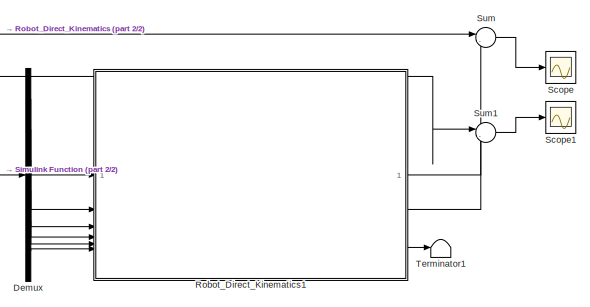
[diagram: root canvas - part 1/2, right side, full height]
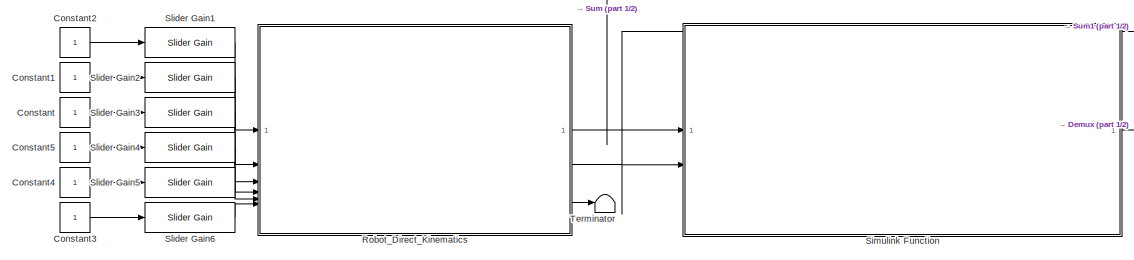
[diagram: root canvas - part 2/2, left side, full height]
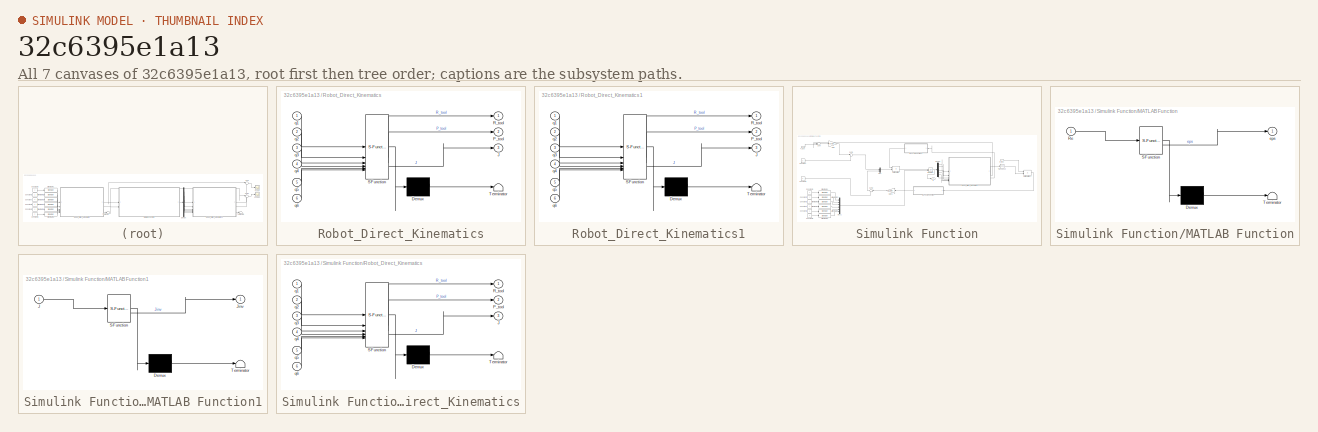
[diagram: thumbnail index - all 7 canvases of the model, root first then tree order]
MODEL slx_32c6395e1a13
KIND model
CONFIG AbsTol = auto
CONFIG EnableMultiTasking = on
CONFIG FixedStep = auto
CONFIG MaxStep = auto
CONFIG MinStep = auto
CONFIG RelTol = 1e-3
CONFIG SampleTimeConstraint = Unconstrained
CONFIG SolverName = VariableStepAuto
CONFIG StartTime = 0.0
CONFIG StopTime = 25
BLOCK [Constant] Constant
BLOCK [Constant] Constant1
BLOCK [Constant] Constant2
BLOCK [Constant] Constant3
BLOCK [Constant] Constant4
BLOCK [Constant] Constant5
BLOCK [Demux] Demux
  Outputs = 6
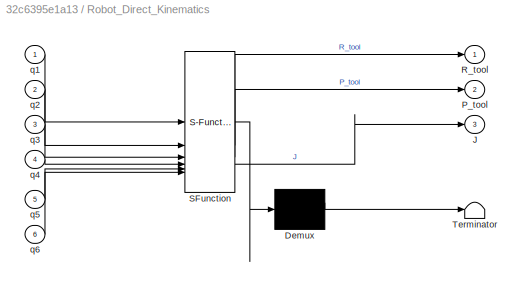
BLOCK [SubSystem] Robot_Direct_Kinematics
  ErrorFcn = Stateflow.Translate.translate
  PermitHierarchicalResolution = ExplicitOnly
  SFBlockType = MATLAB Function
  TreatAsAtomicUnit = on
BLOCK [Demux] Robot_Direct_Kinematics/ Demux 
  Outputs = 1
BLOCK [S-Function] Robot_Direct_Kinematics/ SFunction 
  EnableBusSupport = on
  FunctionName = sf_sfun
  PortCounts = [6 4]
  SFcnIsStateOwnerBlock = off
  SFunctionDeploymentMode = off
  Tag = Stateflow S-Function 2
BLOCK [Terminator] Robot_Direct_Kinematics/ Terminator 
BLOCK [Outport] Robot_Direct_Kinematics/J
  Port = 3
BLOCK [Outport] Robot_Direct_Kinematics/P_tool
  Port = 2
BLOCK [Outport] Robot_Direct_Kinematics/R_tool
BLOCK [Inport] Robot_Direct_Kinematics/q1
BLOCK [Inport] Robot_Direct_Kinematics/q2
  Port = 2
BLOCK [Inport] Robot_Direct_Kinematics/q3
  Port = 3
BLOCK [Inport] Robot_Direct_Kinematics/q4
  Port = 4
BLOCK [Inport] Robot_Direct_Kinematics/q5
  Port = 5
BLOCK [Inport] Robot_Direct_Kinematics/q6
  Port = 6
BLOCK [SubSystem] Robot_Direct_Kinematics1
  ErrorFcn = Stateflow.Translate.translate
  PermitHierarchicalResolution = ExplicitOnly
  SFBlockType = MATLAB Function
  TreatAsAtomicUnit = on
BLOCK [Demux] Robot_Direct_Kinematics1/ Demux 
  Outputs = 1
BLOCK [S-Function] Robot_Direct_Kinematics1/ SFunction 
  EnableBusSupport = on
  FunctionName = sf_sfun
  PortCounts = [6 4]
  SFcnIsStateOwnerBlock = off
  SFunctionDeploymentMode = off
  Tag = Stateflow S-Function 5
BLOCK [Terminator] Robot_Direct_Kinematics1/ Terminator 
BLOCK [Outport] Robot_Direct_Kinematics1/J
  Port = 3
BLOCK [Outport] Robot_Direct_Kinematics1/P_tool
  Port = 2
BLOCK [Outport] Robot_Direct_Kinematics1/R_tool
BLOCK [Inport] Robot_Direct_Kinematics1/q1
BLOCK [Inport] Robot_Direct_Kinematics1/q2
  Port = 2
BLOCK [Inport] Robot_Direct_Kinematics1/q3
  Port = 3
BLOCK [Inport] Robot_Direct_Kinematics1/q4
  Port = 4
BLOCK [Inport] Robot_Direct_Kinematics1/q5
  Port = 5
BLOCK [Inport] Robot_Direct_Kinematics1/q6
  Port = 6
BLOCK [Scope] Scope
  Floating = off
  NumInputPorts = 1
  ScopeSpecificationString = Simulink.scopes.TimeScopeBlockCfg('CurrentConfiguration', extmgr.ConfigurationSet(extmgr.Configuration('Core','General UI',true),extmgr.Configuration('Core','Source UI',true),extmgr.Configuration('Sources','WiredSimulink',true),extmgr.Configuration('Visuals','Time Domain',true,'SerializedDisplays',{struct('MinYLimReal','-1.87145','MaxYLimReal','1.33704','YLabelReal','','MinYLimMag','0.00000','MaxY...<+1478ch>
BLOCK [Scope] Scope1
  Floating = off
  NumInputPorts = 1
  ScopeSpecificationString = Simulink.scopes.TimeScopeBlockCfg('CurrentConfiguration', extmgr.ConfigurationSet(extmgr.Configuration('Core','General UI',true),extmgr.Configuration('Core','Source UI',true),extmgr.Configuration('Sources','WiredSimulink',true,'DataLoggingVariableName','ScopeData1'),extmgr.Configuration('Visuals','Time Domain',true,'SerializedDisplays',{struct('MinYLimReal','-1.87145','MaxYLimReal','1.33704','YLab...<+1517ch>
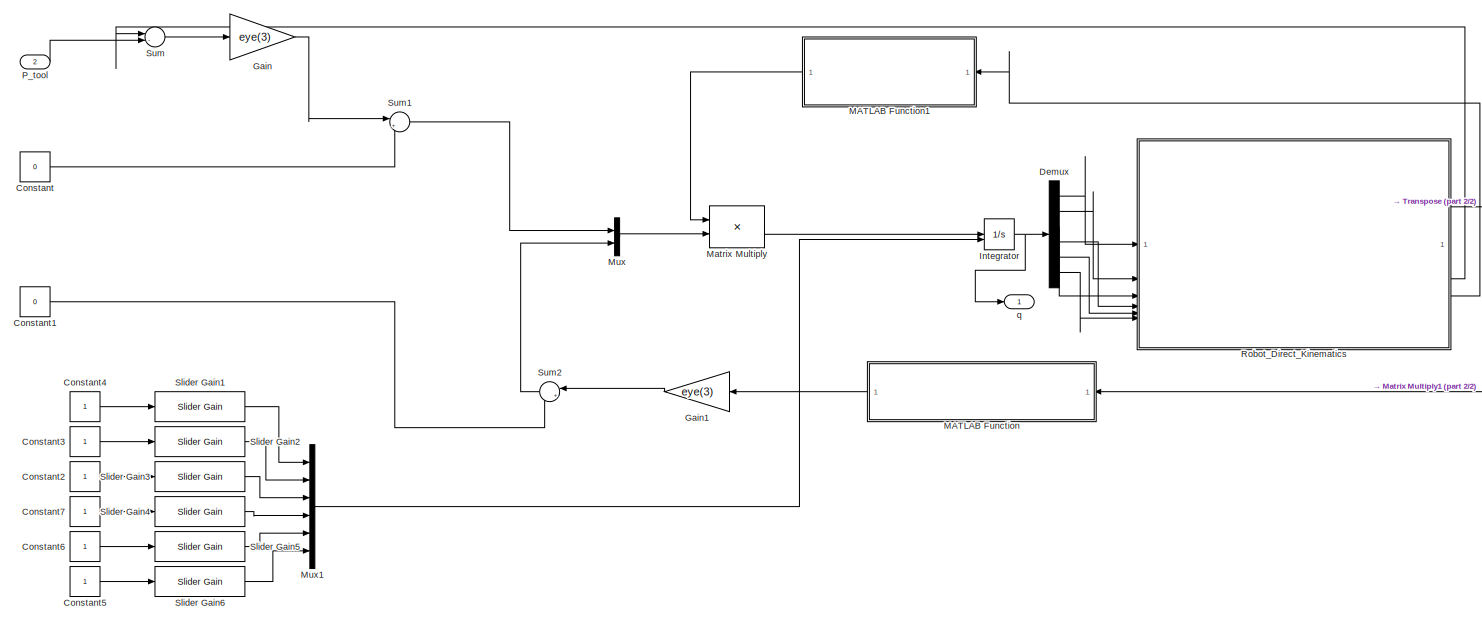
[diagram: Simulink Function - part 1/2, most of the canvas]
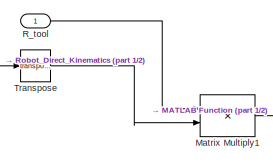
[diagram: Simulink Function - part 2/2, middle right region]
BLOCK [SubSystem] Simulink Function
  TreatAsAtomicUnit = on
BLOCK [Constant] Simulink Function/Constant
  Value = 0
BLOCK [Constant] Simulink Function/Constant1
  Value = 0
BLOCK [Constant] Simulink Function/Constant2
BLOCK [Constant] Simulink Function/Constant3
BLOCK [Constant] Simulink Function/Constant4
BLOCK [Constant] Simulink Function/Constant5
BLOCK [Constant] Simulink Function/Constant6
BLOCK [Constant] Simulink Function/Constant7
BLOCK [Demux] Simulink Function/Demux
  Outputs = 6
BLOCK [Gain] Simulink Function/Gain
  Gain = eye(3)
  Multiplication = Matrix(K*u) (u vector)
BLOCK [Gain] Simulink Function/Gain1
  Gain = eye(3)
  Multiplication = Matrix(K*u) (u vector)
  NameLocation = top
BLOCK [Integrator] Simulink Function/Integrator
  InitialConditionSource = external
BLOCK [SubSystem] Simulink Function/MATLAB Function
  ErrorFcn = Stateflow.Translate.translate
  NameLocation = top
  PermitHierarchicalResolution = ExplicitOnly
  SFBlockType = MATLAB Function
  TreatAsAtomicUnit = on
BLOCK [Demux] Simulink Function/MATLAB Function/ Demux 
  Outputs = 1
BLOCK [S-Function] Simulink Function/MATLAB Function/ SFunction 
  EnableBusSupport = on
  FunctionName = sf_sfun
  PortCounts = [1 2]
  SFcnIsStateOwnerBlock = off
  SFunctionDeploymentMode = off
  Tag = Stateflow S-Function 3
BLOCK [Terminator] Simulink Function/MATLAB Function/ Terminator 
BLOCK [Inport] Simulink Function/MATLAB Function/Re
BLOCK [Outport] Simulink Function/MATLAB Function/eps
BLOCK [SubSystem] Simulink Function/MATLAB Function1
  ErrorFcn = Stateflow.Translate.translate
  NameLocation = top
  PermitHierarchicalResolution = ExplicitOnly
  SFBlockType = MATLAB Function
  TreatAsAtomicUnit = on
BLOCK [Demux] Simulink Function/MATLAB Function1/ Demux 
  Outputs = 1
BLOCK [S-Function] Simulink Function/MATLAB Function1/ SFunction 
  EnableBusSupport = on
  FunctionName = sf_sfun
  PortCounts = [1 2]
  SFcnIsStateOwnerBlock = off
  SFunctionDeploymentMode = off
  Tag = Stateflow S-Function 4
BLOCK [Terminator] Simulink Function/MATLAB Function1/ Terminator 
BLOCK [Inport] Simulink Function/MATLAB Function1/J
BLOCK [Outport] Simulink Function/MATLAB Function1/Jinv
BLOCK [Product] Simulink Function/Matrix Multiply
  Multiplication = Matrix(*)
BLOCK [Product] Simulink Function/Matrix Multiply1
  Multiplication = Matrix(*)
BLOCK [Mux] Simulink Function/Mux
  DisplayOption = bar
  Inputs = 2
BLOCK [Mux] Simulink Function/Mux1
  DisplayOption = bar
  Inputs = 6
BLOCK [Inport] Simulink Function/P_tool
  Port = 2
BLOCK [Inport] Simulink Function/R_tool
BLOCK [SubSystem] Simulink Function/Robot_Direct_Kinematics
  ErrorFcn = Stateflow.Translate.translate
  PermitHierarchicalResolution = ExplicitOnly
  SFBlockType = MATLAB Function
  TreatAsAtomicUnit = on
BLOCK [Demux] Simulink Function/Robot_Direct_Kinematics/ Demux 
  Outputs = 1
BLOCK [S-Function] Simulink Function/Robot_Direct_Kinematics/ SFunction 
  EnableBusSupport = on
  FunctionName = sf_sfun
  PortCounts = [6 4]
  SFcnIsStateOwnerBlock = off
  SFunctionDeploymentMode = off
  Tag = Stateflow S-Function 1
BLOCK [Terminator] Simulink Function/Robot_Direct_Kinematics/ Terminator 
BLOCK [Outport] Simulink Function/Robot_Direct_Kinematics/J
  Port = 3
BLOCK [Outport] Simulink Function/Robot_Direct_Kinematics/P_tool
  Port = 2
BLOCK [Outport] Simulink Function/Robot_Direct_Kinematics/R_tool
BLOCK [Inport] Simulink Function/Robot_Direct_Kinematics/q1
BLOCK [Inport] Simulink Function/Robot_Direct_Kinematics/q2
  Port = 2
BLOCK [Inport] Simulink Function/Robot_Direct_Kinematics/q3
  Port = 3
BLOCK [Inport] Simulink Function/Robot_Direct_Kinematics/q4
  Port = 4
BLOCK [Inport] Simulink Function/Robot_Direct_Kinematics/q5
  Port = 5
BLOCK [Inport] Simulink Function/Robot_Direct_Kinematics/q6
  Port = 6
BLOCK [Reference] Simulink Function/Slider Gain1  REF=simulink/Math
Operations/Slider
Gain
  SourceBlock = simulink/Math\nOperations/Slider\nGain
  SourceType = Slider Gain
BLOCK [Reference] Simulink Function/Slider Gain2  REF=simulink/Math
Operations/Slider
Gain
  SourceBlock = simulink/Math\nOperations/Slider\nGain
  SourceType = Slider Gain
BLOCK [Reference] Simulink Function/Slider Gain3  REF=simulink/Math
Operations/Slider
Gain
  SourceBlock = simulink/Math\nOperations/Slider\nGain
  SourceType = Slider Gain
BLOCK [Reference] Simulink Function/Slider Gain4  REF=simulink/Math
Operations/Slider
Gain
  SourceBlock = simulink/Math\nOperations/Slider\nGain
  SourceType = Slider Gain
BLOCK [Reference] Simulink Function/Slider Gain5  REF=simulink/Math
Operations/Slider
Gain
  SourceBlock = simulink/Math\nOperations/Slider\nGain
  SourceType = Slider Gain
BLOCK [Reference] Simulink Function/Slider Gain6  REF=simulink/Math
Operations/Slider
Gain
  SourceBlock = simulink/Math\nOperations/Slider\nGain
  SourceType = Slider Gain
BLOCK [Sum] Simulink Function/Sum
  Inputs = |-+
  NameLocation = top
BLOCK [Sum] Simulink Function/Sum1
  Inputs = |++
BLOCK [Sum] Simulink Function/Sum2
  Inputs = |++
  NameLocation = top
BLOCK [Math] Simulink Function/Transpose
  Operator = transpose
BLOCK [Outport] Simulink Function/q
BLOCK [Reference] Slider Gain1  REF=simulink/Math
Operations/Slider
Gain
  SourceBlock = simulink/Math\nOperations/Slider\nGain
  SourceType = Slider Gain
BLOCK [Reference] Slider Gain2  REF=simulink/Math
Operations/Slider
Gain
  SourceBlock = simulink/Math\nOperations/Slider\nGain
  SourceType = Slider Gain
BLOCK [Reference] Slider Gain3  REF=simulink/Math
Operations/Slider
Gain
  SourceBlock = simulink/Math\nOperations/Slider\nGain
  SourceType = Slider Gain
BLOCK [Reference] Slider Gain4  REF=simulink/Math
Operations/Slider
Gain
  SourceBlock = simulink/Math\nOperations/Slider\nGain
  SourceType = Slider Gain
BLOCK [Reference] Slider Gain5  REF=simulink/Math
Operations/Slider
Gain
  SourceBlock = simulink/Math\nOperations/Slider\nGain
  SourceType = Slider Gain
BLOCK [Reference] Slider Gain6  REF=simulink/Math
Operations/Slider
Gain
  SourceBlock = simulink/Math\nOperations/Slider\nGain
  SourceType = Slider Gain
BLOCK [Sum] Sum
  Inputs = |-+
BLOCK [Sum] Sum1
  Inputs = |-+
BLOCK [Terminator] Terminator
BLOCK [Terminator] Terminator1
LINE Constant1:1 -> Slider Gain2:1
LINE Constant2:1 -> Slider Gain1:1
LINE Constant3:1 -> Slider Gain6:1
LINE Constant4:1 -> Slider Gain5:1
LINE Constant5:1 -> Slider Gain4:1
LINE Constant:1 -> Slider Gain3:1
LINE Demux:1 -> Robot_Direct_Kinematics1:1
LINE Demux:2 -> Robot_Direct_Kinematics1:2
LINE Demux:3 -> Robot_Direct_Kinematics1:3
LINE Demux:4 -> Robot_Direct_Kinematics1:4
LINE Demux:5 -> Robot_Direct_Kinematics1:5
LINE Demux:6 -> Robot_Direct_Kinematics1:6
LINE Robot_Direct_Kinematics1:1 -> Sum:2
LINE Robot_Direct_Kinematics1:2 -> Sum1:2
LINE Robot_Direct_Kinematics1:3 -> Terminator1:1
NET Robot_Direct_Kinematics:1 -> Simulink Function:1, Sum:1
NET Robot_Direct_Kinematics:2 -> Simulink Function:2, Sum1:1
LINE Robot_Direct_Kinematics:3 -> Terminator:1
LINE Simulink Function/Constant1:1 -> Simulink Function/Sum2:2
LINE Simulink Function/Constant2:1 -> Simulink Function/Slider Gain3:1
LINE Simulink Function/Constant3:1 -> Simulink Function/Slider Gain2:1
LINE Simulink Function/Constant4:1 -> Simulink Function/Slider Gain1:1
LINE Simulink Function/Constant5:1 -> Simulink Function/Slider Gain6:1
LINE Simulink Function/Constant6:1 -> Simulink Function/Slider Gain5:1
LINE Simulink Function/Constant7:1 -> Simulink Function/Slider Gain4:1
LINE Simulink Function/Constant:1 -> Simulink Function/Sum1:2
LINE Simulink Function/Demux:1 -> Simulink Function/Robot_Direct_Kinematics:1
LINE Simulink Function/Demux:2 -> Simulink Function/Robot_Direct_Kinematics:2
LINE Simulink Function/Demux:3 -> Simulink Function/Robot_Direct_Kinematics:3
LINE Simulink Function/Demux:4 -> Simulink Function/Robot_Direct_Kinematics:4
LINE Simulink Function/Demux:5 -> Simulink Function/Robot_Direct_Kinematics:5
LINE Simulink Function/Demux:6 -> Simulink Function/Robot_Direct_Kinematics:6
LINE Simulink Function/Gain1:1 -> Simulink Function/Sum2:1
LINE Simulink Function/Gain:1 -> Simulink Function/Sum1:1
NET Simulink Function/Integrator:1 -> Simulink Function/Demux:1, Simulink Function/q:1
LINE Simulink Function/MATLAB Function1:1 -> Simulink Function/Matrix Multiply:1
LINE Simulink Function/MATLAB Function:1 -> Simulink Function/Gain1:1
LINE Simulink Function/Matrix Multiply1:1 -> Simulink Function/MATLAB Function:1
LINE Simulink Function/Matrix Multiply:1 -> Simulink Function/Integrator:1
LINE Simulink Function/Mux1:1 -> Simulink Function/Integrator:2
LINE Simulink Function/Mux:1 -> Simulink Function/Matrix Multiply:2
LINE Simulink Function/P_tool:1 -> Simulink Function/Sum:2
LINE Simulink Function/R_tool:1 -> Simulink Function/Matrix Multiply1:1
LINE Simulink Function/Robot_Direct_Kinematics:1 -> Simulink Function/Transpose:1
LINE Simulink Function/Robot_Direct_Kinematics:2 -> Simulink Function/Sum:1
LINE Simulink Function/Robot_Direct_Kinematics:3 -> Simulink Function/MATLAB Function1:1
LINE Simulink Function/Slider Gain1:1 -> Simulink Function/Mux1:1
LINE Simulink Function/Slider Gain2:1 -> Simulink Function/Mux1:2
LINE Simulink Function/Slider Gain3:1 -> Simulink Function/Mux1:3
LINE Simulink Function/Slider Gain4:1 -> Simulink Function/Mux1:4
LINE Simulink Function/Slider Gain5:1 -> Simulink Function/Mux1:5
LINE Simulink Function/Slider Gain6:1 -> Simulink Function/Mux1:6
LINE Simulink Function/Sum1:1 -> Simulink Function/Mux:1
LINE Simulink Function/Sum2:1 -> Simulink Function/Mux:2
LINE Simulink Function/Sum:1 -> Simulink Function/Gain:1
LINE Simulink Function/Transpose:1 -> Simulink Function/Matrix Multiply1:2
LINE Simulink Function:1 -> Demux:1
LINE Slider Gain1:1 -> Robot_Direct_Kinematics:1
LINE Slider Gain2:1 -> Robot_Direct_Kinematics:2
LINE Slider Gain3:1 -> Robot_Direct_Kinematics:3
LINE Slider Gain4:1 -> Robot_Direct_Kinematics:4
LINE Slider Gain5:1 -> Robot_Direct_Kinematics:5
LINE Slider Gain6:1 -> Robot_Direct_Kinematics:6
LINE Sum1:1 -> Scope1:1
LINE Sum:1 -> Scope:1
note: NET lines group one-source signal fan-out (src -> all destinations, sorted); 1:1 wires keep LINE
CHART Simulink Function/Robot_Direct_Kinematics states=1 transitions=1
  STATE_LABEL 'eML_blk_kernel()'
  STATE_LABEL 'SCRIPT:\nfunction [R_tool,P_tool,J] = Robot_Direct_Kinematics(q1,q2,q3,q4,q5,q6)\n%#codegen\n\n%    This function was generated by the Symbolic Math Toolbox version 24.2.\n%    24-May-2025 22:37:09\n\n% q1 = complex(q1);  % if required to enforce complex operations\n% q2 = complex(q2);  % if required to enforce complex operations\n% q3 = complex(q3);  % if required to enforce complex operations\n% q4 = comp...<+3608ch>'  <repeated x3 — deduplicated; at blocks: Robot_Direct_Kinematics, Robot_Direct_Kinematics1>
CHART Robot_Direct_Kinematics states=1 transitions=1
  STATE_LABEL 'eML_blk_kernel()'
CHART Simulink Function/MATLAB Function states=1 transitions=1
  STATE_LABEL 'eML_blk_kernel()'
  STATE_LABEL "SCRIPT:\nfunction eps = extract_quat_vector(Re)\n\neps = zeros(3,1);\n\n\nif ~isequal(size(Re), [3 3])\n    return; \nend\n\ntraceR = trace(Re);\ntraceR = min(max(traceR, -1), 3);\ntheta = acos((traceR - 1) / 2);\n\ne_skew = 0.5 * (Re - Re');  \neps_raw = [e_skew(3,2); e_skew(1,3); e_skew(2,1)];\n\nif abs(theta) < 1e-6\n    eps = zeros(3,1);\nelse\n    eps = (0.5 / sin(theta)) * eps_raw * theta;\nend\nend\n"
CHART Simulink Function/MATLAB Function1 states=1 transitions=1
  STATE_LABEL 'eML_blk_kernel()'
  STATE_LABEL 'SCRIPT:\nfunction Jinv = jacobian_inverse(J)\n\n    Jinv = inv(J);\n\nend\n'
CHART Robot_Direct_Kinematics1 states=1 transitions=1
  STATE_LABEL 'eML_blk_kernel()'
CHART  states=0 transitions=0
CHART  states=0 transitions=0
CHART  states=0 transitions=0
CHART  states=0 transitions=0
CHART  states=0 transitions=0
